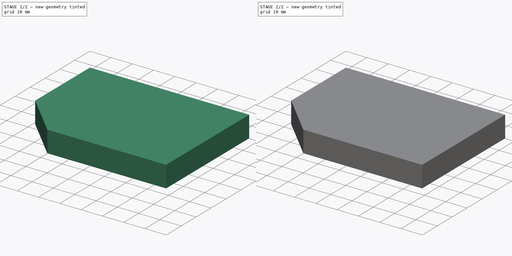
[diagram: build sequence overview — one tinted view per stage of 2, left to right]
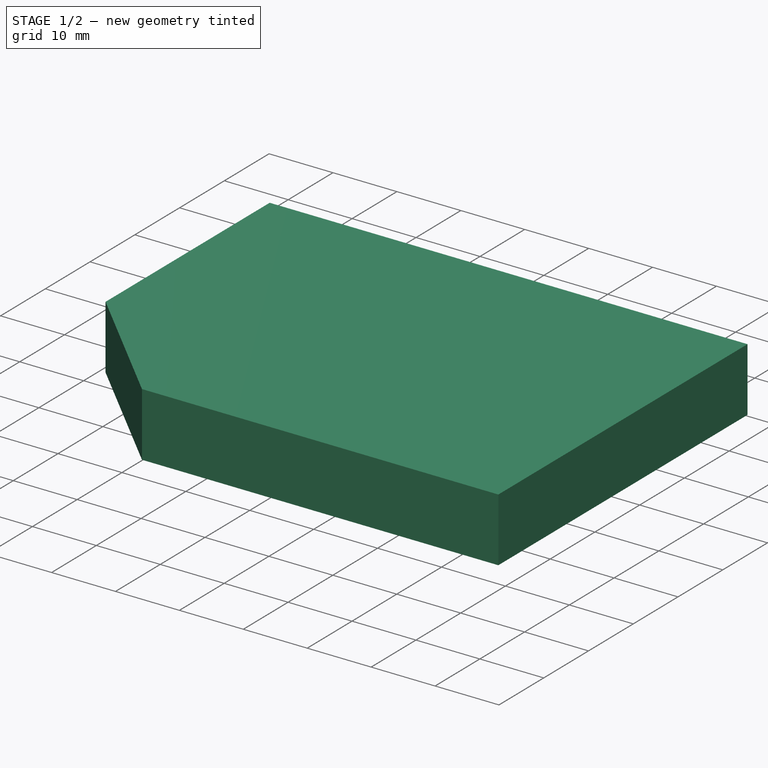
[diagram: stage 1 of 2 — iso view after this stage's code; geometry added in this stage tinted green]
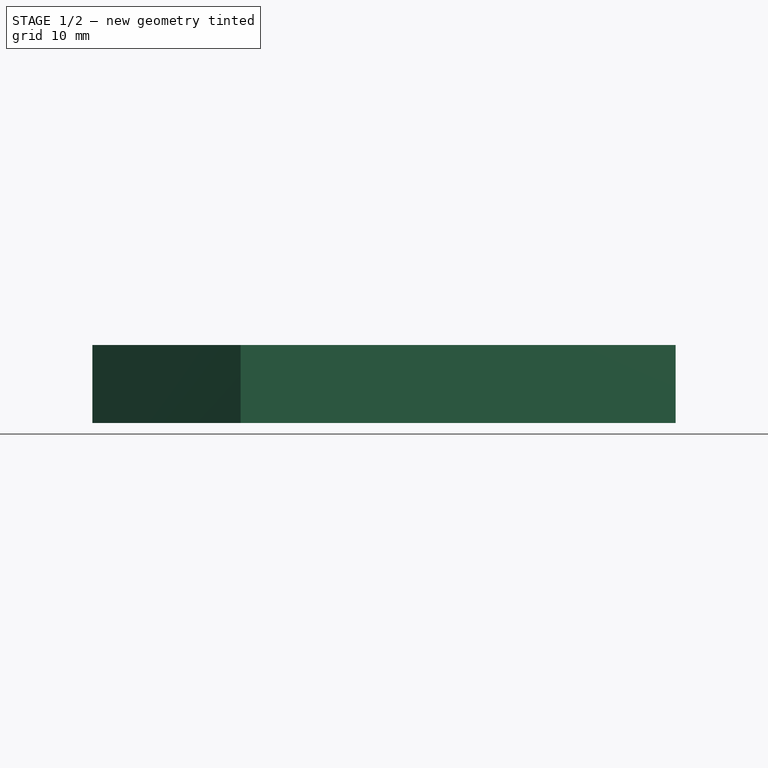
[diagram: stage 1 of 2 — front view after this stage's code; geometry added in this stage tinted green]
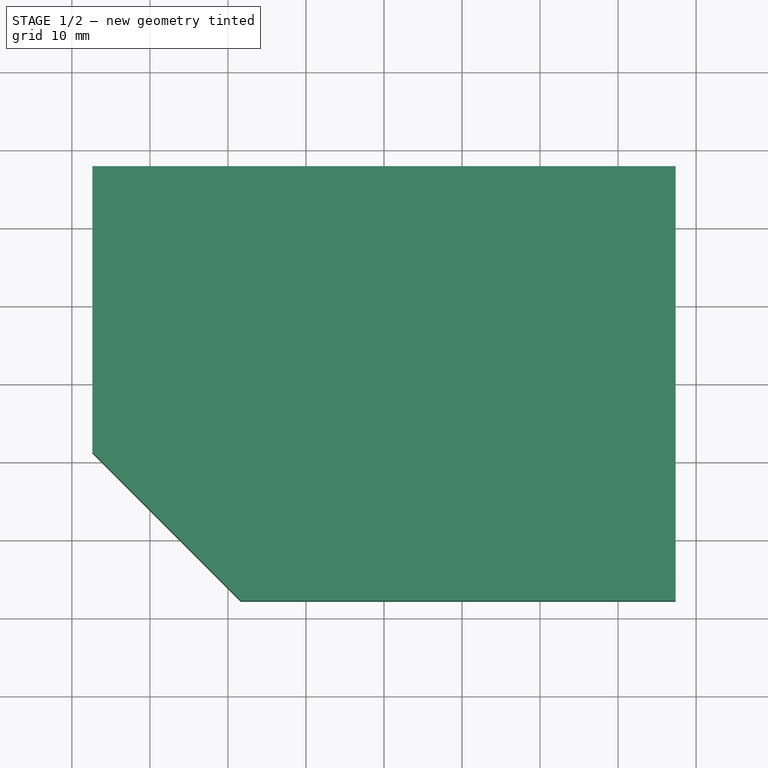
[diagram: stage 1 of 2 — top view after this stage's code; geometry added in this stage tinted green]
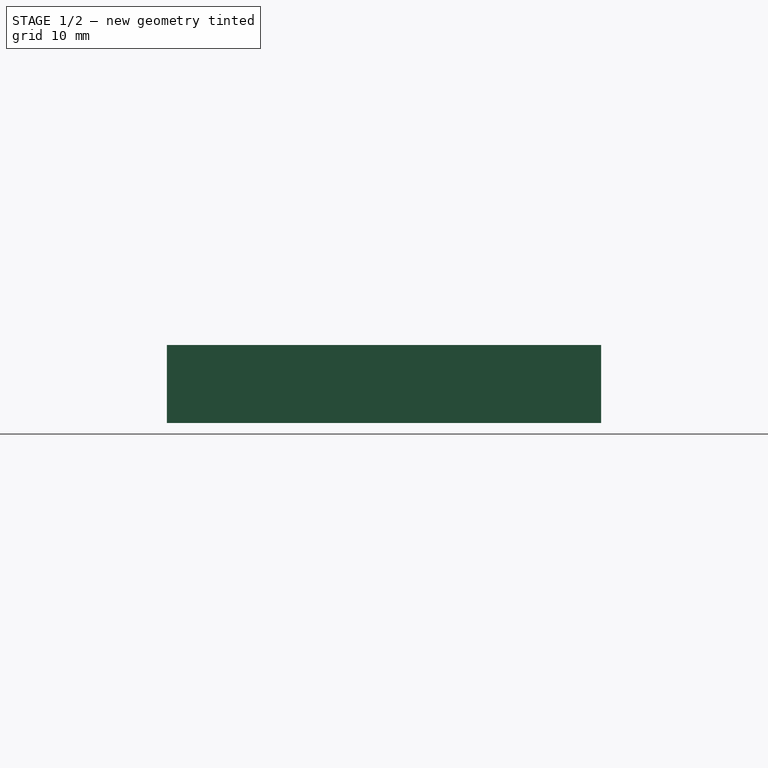
[diagram: stage 1 of 2 — right view after this stage's code; geometry added in this stage tinted green]
FCSTD DOCUMENT  (FreeCAD 0.22R38334 (Git))
Label: macroTests
License: All rights reserved
LicenseURL: http://en.wikipedia.org/wiki/All_rights_reserved
objects: Sketcher::SketchObject×1, PartDesign::Pad×1, Part::Box×1, PartDesign::Chamfer×1, PartDesign::SubShapeBinder×1, PartDesign::Body×1, App::Part×1, Part::Offset2D×1, Spreadsheet::Sheet×1
note: 12 computed .brp shape members not serialized (recipe doc carries the construction recipe); baked Part::Feature solids carry a one-line shape summary decoded from their .brp

FEATURE [Sketcher::SketchObject] Sketch
  AttachmentSupport = -> [XY_Plane]
  FullyConstrained = false
  MakeInternals = false
  MapMode = 5
  sketch-geometry (5):
    g0: LineSegment StartX=-37.3785 StartY=-27.832 StartZ=0 EndX=37.3785 EndY=-27.832 EndZ=0
    g1: LineSegment StartX=37.3785 StartY=-27.832 StartZ=0 EndX=37.3785 EndY=27.832 EndZ=0
    g2: LineSegment StartX=37.3785 StartY=27.832 StartZ=0 EndX=-37.3785 EndY=27.832 EndZ=0
    g3: LineSegment StartX=-37.3785 StartY=27.832 StartZ=0 EndX=-37.3785 EndY=-27.832 EndZ=0
    g4: GeomPoint X=0 Y=0 Z=0
  constraints (10):
    c: Coincident(g0,g1)
    c: Coincident(g1,g2)
    c: Coincident(g2,g3)
    c: Coincident(g3,g0)
    c: Horizontal(g0)
    c: Horizontal(g2)
    c: Vertical(g1)
    c: Vertical(g3)
    c: Symmetric(g2,g0,g4)
    c: Coincident(g4,g-1)
FEATURE [PartDesign::Pad] Pad
  Direction = (0,0,1)
  Length = 10
  Length2 = 10
  Profile = -> Sketch
  ReferenceAxis = -> Sketch [N_Axis]
  Suppressed = false
  Type = 0
FEATURE [PartDesign::Chamfer] Chamfer
  Angle = 45
  Base = -> Pad [Edge1]
  BaseFeature = -> Pad
  ChamferType = 0
  FlipDirection = false
  Size = 19
  Size2 = 1
  SupportTransform = false
  Suppressed = false
  UseAllEdges = false
FEATURE [PartDesign::SubShapeBinder] Binder
  BindCopyOnChange = 0
  BindMode = 0
  ClaimChildren = false
  Context = -> Part [Body.Binder.]
  Fuse = false
  MakeFace = true
  OffsetFill = false
  OffsetIntersection = false
  OffsetJoinType = 0
  OffsetOpenResult = false
  PartialLoad = false
  Relative = true
  Support = -> [Chamfer[Face3]]
  _Version = 2
FEATURE [PartDesign::Body] Body
  AllowCompound = false
  Group = -> [Sketch,Pad,Chamfer,Binder]
  Origin = -> Origin
  Tip = -> Chamfer
FEATURE [App::Part] Part
  Group = -> [Body]
  Origin = -> Origin001
FEATURE [Part::Offset2D] Offset2D
  Fill = false
  Intersection = false
  Join = 0
  Mode = 1
  SelfIntersection = false
  Source = -> Binder
  Value = -3
FEATURE [Spreadsheet::Sheet] EditMe
  cells = A1='User Variables; D1='Calculated Values; A2='Hexagon Radius:; B2(radius)=2; D2='X Interval:; E2(xInterval)==2 * sin(60 deg) * (B2 * 2 + B3 - 0.267949 * B2); A3='Hexagon Separation:; B3(separation)=0.25; D3='Y Interval:; E3(yInterval)==2 * B2 + B3 - 0.267949 * B2; A4='Grid Width:; B4(width)=14.7573593128807; D4='First X:; E4(firstX)==B2; A5='Grid Length:; B5(length)=14.7573593128807; D5='First Y:; E5(firstY)==B2; A6='Grid Height:; B6(height)=1; D6='Count X:; E6(countX)==round(B5 / E2) + 2; D7='Count Y:; E7(countY)==round(B4 / E3) + 2; A8='Tweak X:; B8(tweakX)=-35.2571966564404; D8='Array2 XPos:; E8(array2XPos)==sin(60 deg) * (B2 * 2 + B3 - 0.2679489 * B2); A9='Tweak Y:; B9(tweakY)=-25.7106346564404; D9='Array2 YPos:; E9(array2YPos)==E3 / 2; A10='Tweak Z:; B10(tweakZ)=3
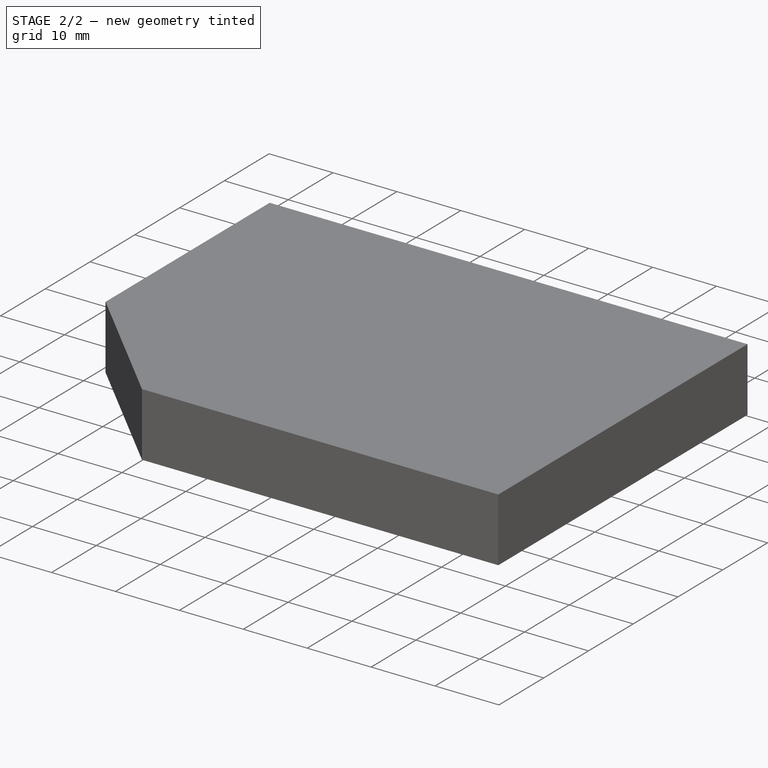
[diagram: stage 2 of 2 — iso view after this stage's code; geometry added in this stage tinted green]
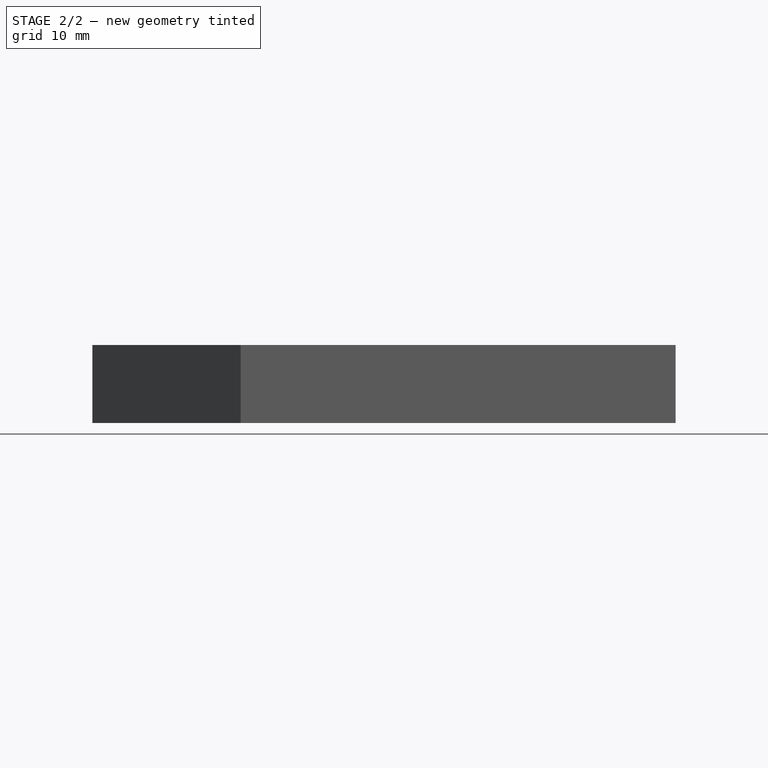
[diagram: stage 2 of 2 — front view after this stage's code; geometry added in this stage tinted green]
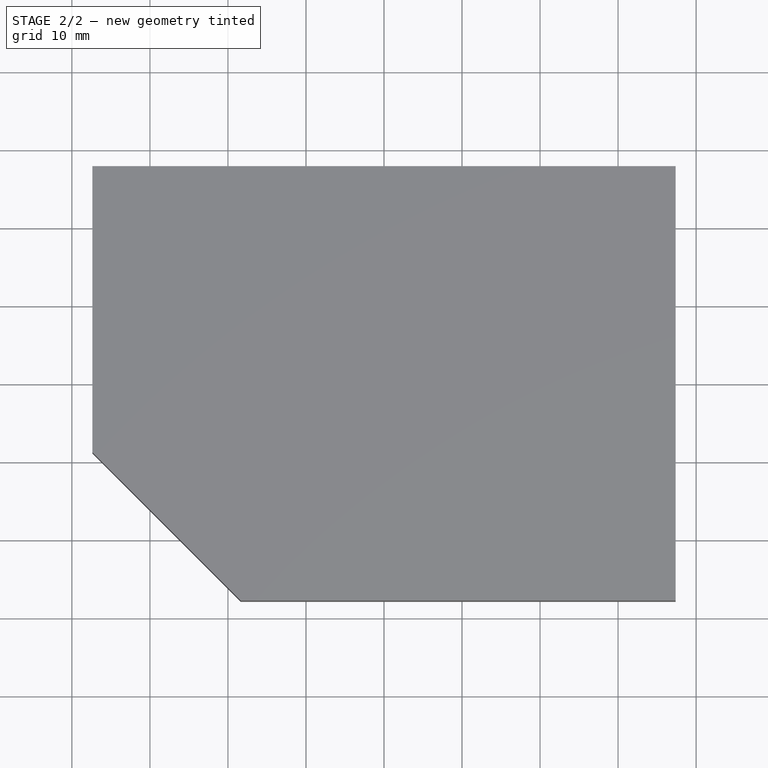
[diagram: stage 2 of 2 — top view after this stage's code; geometry added in this stage tinted green]
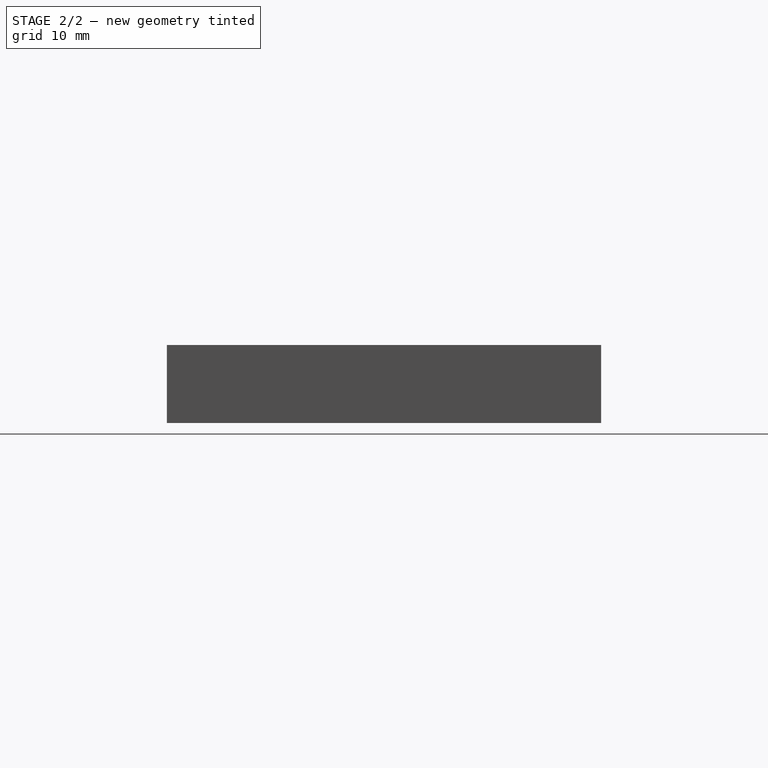
[diagram: stage 2 of 2 — right view after this stage's code; geometry added in this stage tinted green]
FEATURE [Part::Box] Box  label="Cube"
  AttacherType = Attacher::AttachEngine3D
  Height = 10
  Length = 10
  Width = 10
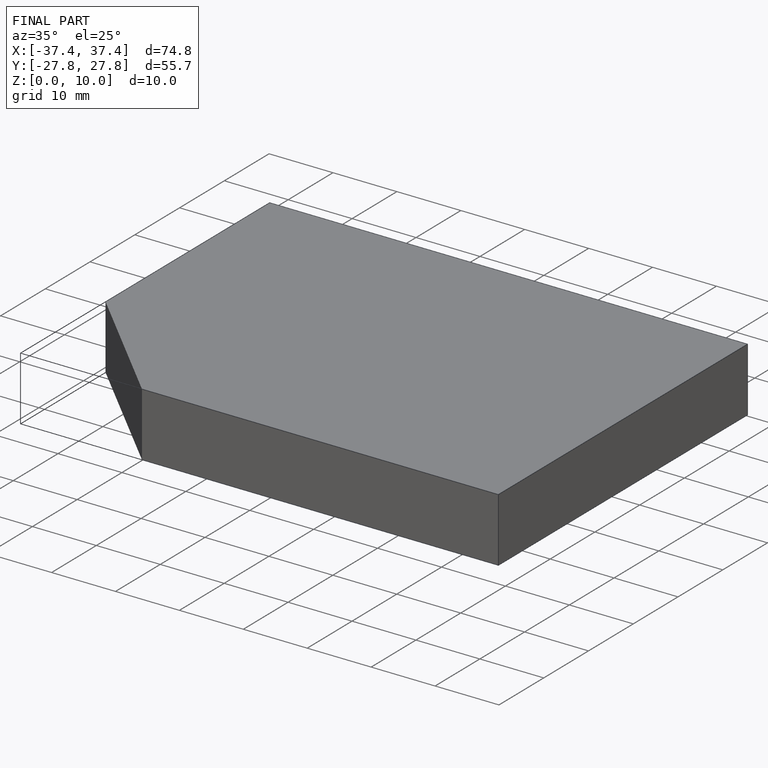
[diagram: finished part — iso view with bounding-box wireframe]
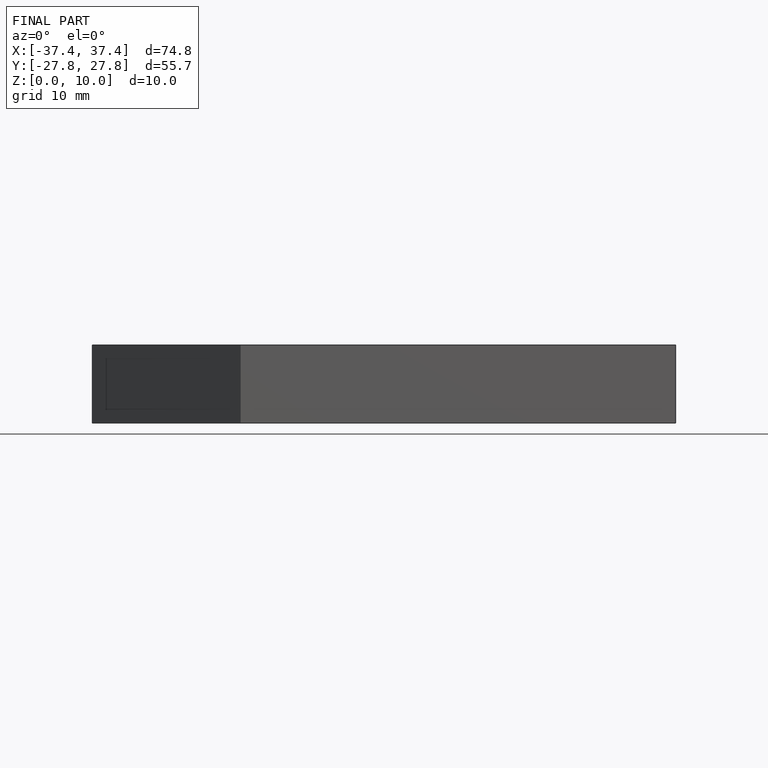
[diagram: finished part — front view with bounding-box wireframe]
